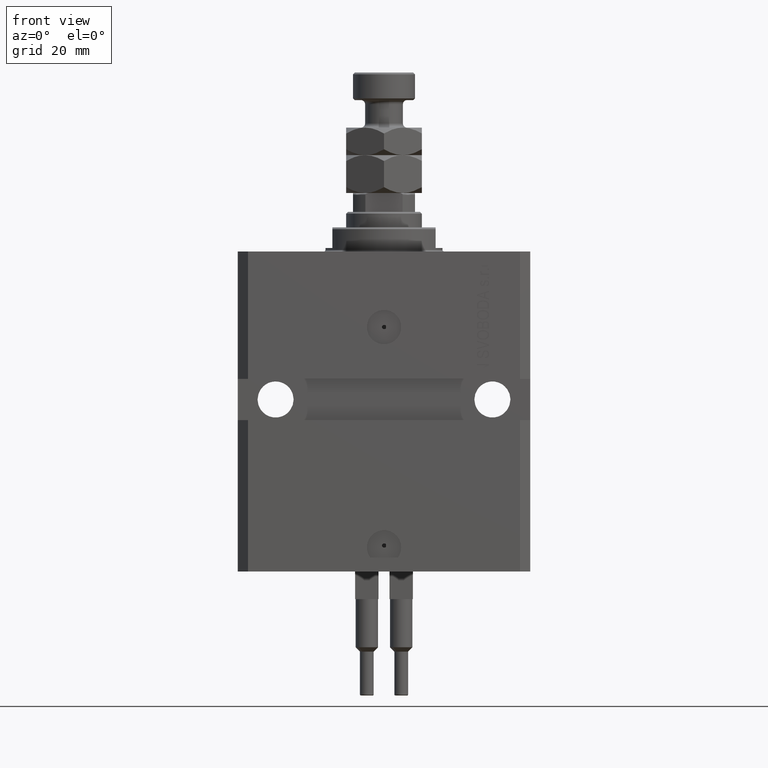
[diagram: clean part render]
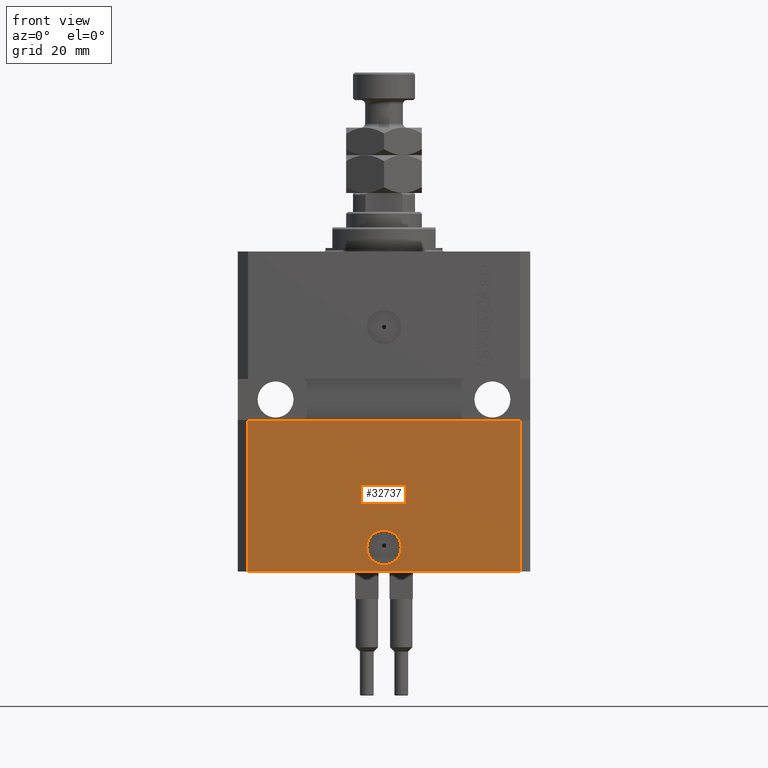
[diagram: same view with one face highlighted and labeled with its STEP entity id]
A machine part, front view. The second image highlights one B-rep face of the part: STEP entity #32737.
In plain terms, the highlighted planar face has unit normal (0, -1, 0).
Its self-contained STEP definition (entity closure, byte-faithful):
#379 = EDGE_LOOP ( 'NONE', ( #9835, #47695, #31350, #40099 ) ) ;
#445 = CARTESIAN_POINT ( 'NONE',  ( -39.50000000000000000, -31.50000000000000711, -48.99999999999999289 ) ) ;
#1304 = DIRECTION ( 'NONE',  ( 0.000000000000000000, 0.000000000000000000, 1.000000000000000000 ) ) ;
#1357 = EDGE_CURVE ( 'NONE', #17147, #31201, #39666, .T. ) ;
#2088 = DIRECTION ( 'NONE',  ( 0.000000000000000000, -0.000000000000000000, -1.000000000000000000 ) ) ;
#2823 = CARTESIAN_POINT ( 'NONE',  ( -39.50000000000000711, -31.50000000000000000, -93.00000000000000000 ) ) ;
#2939 = CARTESIAN_POINT ( 'NONE',  ( -42.50000000000000000, -31.50000000000000711, -48.99999999999999289 ) ) ;
#3185 = EDGE_CURVE ( 'NONE', #34478, #36819, #49882, .T. ) ;
#5441 = EDGE_CURVE ( 'NONE', #34478, #49285, #43270, .T. ) ;
#7116 = EDGE_CURVE ( 'NONE', #49285, #42340, #22149, .T. ) ;
#8168 = CARTESIAN_POINT ( 'NONE',  ( 39.50000000000000711, -31.50000000000000000, -93.00000000000000000 ) ) ;
#8862 = EDGE_CURVE ( 'NONE', #31201, #17147, #19009, .T. ) ;
#9835 = ORIENTED_EDGE ( 'NONE', *, *, #7116, .F. ) ;
#9974 = CARTESIAN_POINT ( 'NONE',  ( 0.000000000000000000, -31.50000000000000000, -86.00000000000000000 ) ) ;
#10208 = VECTOR ( 'NONE', #49186, 1000.000000000000000 ) ;
#11049 = AXIS2_PLACEMENT_3D ( 'NONE', #9974, #49114, #25336 ) ;
#11456 = CARTESIAN_POINT ( 'NONE',  ( 5.000000000000006217, -31.50000000000000000, -86.00000000000000000 ) ) ;
#13442 = CARTESIAN_POINT ( 'NONE',  ( 0.000000000000000000, -31.50000000000000000, -86.00000000000000000 ) ) ;
#14036 = VECTOR ( 'NONE', #22392, 1000.000000000000000 ) ;
#14191 = EDGE_CURVE ( 'NONE', #36819, #42340, #37188, .T. ) ;
#14373 = CARTESIAN_POINT ( 'NONE',  ( 39.50000000000000711, -31.50000000000000000, -93.00000000000000000 ) ) ;
#16641 = ORIENTED_EDGE ( 'NONE', *, *, #1357, .F. ) ;
#17147 = VERTEX_POINT ( 'NONE', #11456 ) ;
#18810 = CARTESIAN_POINT ( 'NONE',  ( -5.000000000000006217, -31.50000000000000000, -86.00000000000000000 ) ) ;
#19009 = CIRCLE ( 'NONE', #37850, 5.000000000000006217 ) ;
#20773 = AXIS2_PLACEMENT_3D ( 'NONE', #21531, #37150, #2088 ) ;
#21146 = DIRECTION ( 'NONE',  ( 1.000000000000000000, 0.000000000000000000, 0.000000000000000000 ) ) ;
#21531 = CARTESIAN_POINT ( 'NONE',  ( -39.50000000000000711, -31.50000000000000000, -93.00000000000000000 ) ) ;
#22149 = LINE ( 'NONE', #2939, #14036 ) ;
#22281 = VECTOR ( 'NONE', #1304, 1000.000000000000000 ) ;
#22392 = DIRECTION ( 'NONE',  ( 1.000000000000000000, 1.632680918566406300E-16, 0.000000000000000000 ) ) ;
#24628 = FACE_OUTER_BOUND ( 'NONE', #379, .T. ) ;
#25336 = DIRECTION ( 'NONE',  ( 1.000000000000000000, 0.000000000000000000, 0.000000000000000000 ) ) ;
#28943 = PLANE ( 'NONE',  #20773 ) ;
#29167 = CARTESIAN_POINT ( 'NONE',  ( -39.50000000000000711, -31.50000000000000000, -93.00000000000000000 ) ) ;
#29756 = CARTESIAN_POINT ( 'NONE',  ( 39.50000000000001421, -31.49999999999999289, -48.99999999999999289 ) ) ;
#30199 = DIRECTION ( 'NONE',  ( 1.000000000000000000, 0.000000000000000000, 0.000000000000000000 ) ) ;
#31201 = VERTEX_POINT ( 'NONE', #18810 ) ;
#31350 = ORIENTED_EDGE ( 'NONE', *, *, #3185, .T. ) ;
#32737 = ADVANCED_FACE ( 'NONE', ( #48644, #24628 ), #28943, .T. ) ;
#34478 = VERTEX_POINT ( 'NONE', #29167 ) ;
#36819 = VERTEX_POINT ( 'NONE', #8168 ) ;
#37150 = DIRECTION ( 'NONE',  ( 0.000000000000000000, -1.000000000000000000, 0.000000000000000000 ) ) ;
#37188 = LINE ( 'NONE', #14373, #10208 ) ;
#37850 = AXIS2_PLACEMENT_3D ( 'NONE', #13442, #48255, #21146 ) ;
#39454 = ORIENTED_EDGE ( 'NONE', *, *, #8862, .F. ) ;
#39666 = CIRCLE ( 'NONE', #11049, 5.000000000000006217 ) ;
#39838 = VECTOR ( 'NONE', #30199, 1000.000000000000000 ) ;
#40099 = ORIENTED_EDGE ( 'NONE', *, *, #14191, .T. ) ;
#42340 = VERTEX_POINT ( 'NONE', #29756 ) ;
#43270 = LINE ( 'NONE', #48120, #22281 ) ;
#47695 = ORIENTED_EDGE ( 'NONE', *, *, #5441, .F. ) ;
#48120 = CARTESIAN_POINT ( 'NONE',  ( -39.50000000000000711, -31.50000000000000000, -93.00000000000000000 ) ) ;
#48255 = DIRECTION ( 'NONE',  ( 1.176083712526788232E-16, -1.000000000000000000, 0.000000000000000000 ) ) ;
#48644 = FACE_BOUND ( 'NONE', #50017, .T. ) ;
#49114 = DIRECTION ( 'NONE',  ( 1.176083712526788232E-16, -1.000000000000000000, 0.000000000000000000 ) ) ;
#49186 = DIRECTION ( 'NONE',  ( 0.000000000000000000, 0.000000000000000000, 1.000000000000000000 ) ) ;
#49285 = VERTEX_POINT ( 'NONE', #445 ) ;
#49882 = LINE ( 'NONE', #2823, #39838 ) ;
#50017 = EDGE_LOOP ( 'NONE', ( #16641, #39454 ) ) ;